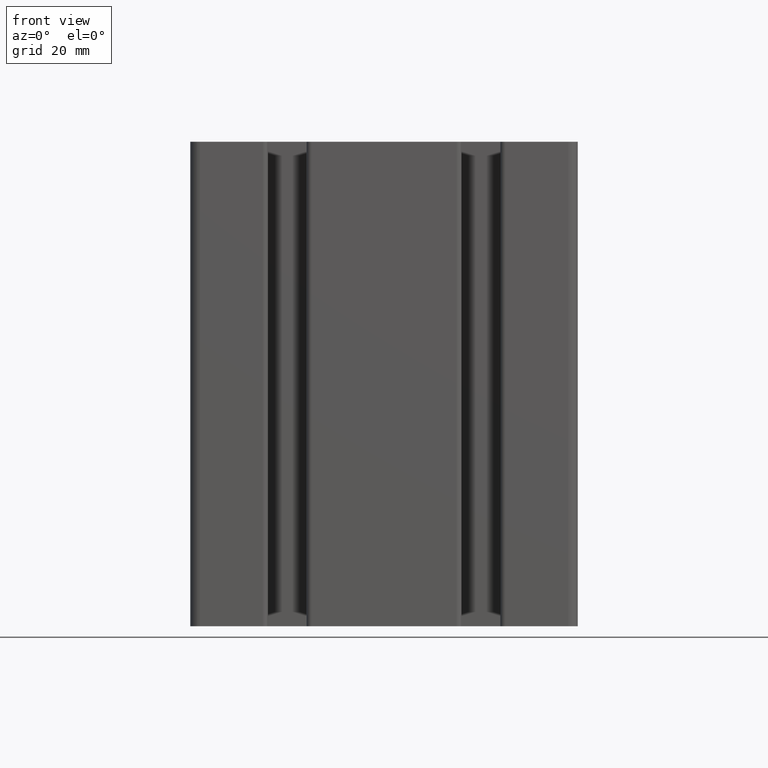
[diagram: clean part render]
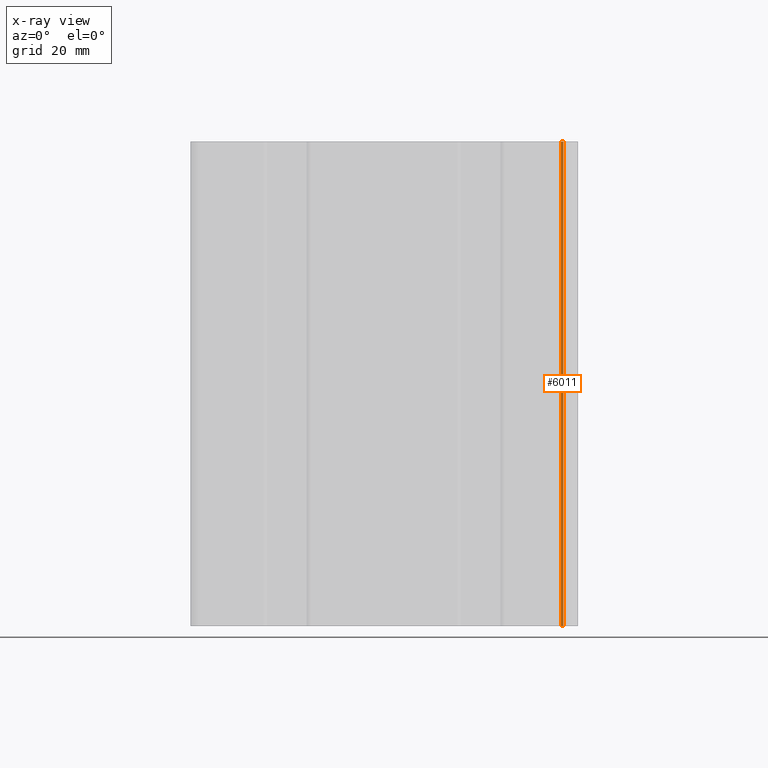
[diagram: x-ray — body ghosted, one internal face saturated and labeled with its STEP entity id]
A machine part, front view, then the same camera in x-ray: the body is ghosted and one INTERNAL B-rep face — a face not visible from any outside direction — is saturated and labeled: STEP entity #6011.
In plain terms, the highlighted planar face has unit normal (0, 1, 0).
Its self-contained STEP definition (entity closure, byte-faithful):
#87=PLANE('',#6427);
#301=FACE_OUTER_BOUND('',#613,.T.);
#613=EDGE_LOOP('',(#4325,#4326,#4327,#4328));
#1041=LINE('',#9280,#1665);
#1043=LINE('',#9284,#1667);
#1044=LINE('',#9286,#1668);
#1045=LINE('',#9287,#1669);
#1665=VECTOR('',#7441,100.);
#1667=VECTOR('',#7445,0.500001995948849);
#1668=VECTOR('',#7446,100.);
#1669=VECTOR('',#7447,0.500001995948849);
#2591=VERTEX_POINT('',#9277);
#2592=VERTEX_POINT('',#9279);
#2593=VERTEX_POINT('',#9283);
#2594=VERTEX_POINT('',#9285);
#3305=EDGE_CURVE('',#2592,#2591,#1041,.T.);
#3307=EDGE_CURVE('',#2593,#2591,#1043,.T.);
#3308=EDGE_CURVE('',#2594,#2593,#1044,.T.);
#3309=EDGE_CURVE('',#2592,#2594,#1045,.T.);
#4325=ORIENTED_EDGE('',*,*,#3307,.F.);
#4326=ORIENTED_EDGE('',*,*,#3308,.F.);
#4327=ORIENTED_EDGE('',*,*,#3309,.F.);
#4328=ORIENTED_EDGE('',*,*,#3305,.T.);
#6011=ADVANCED_FACE('',(#301),#87,.F.);
#6427=AXIS2_PLACEMENT_3D('',#9282,#7443,#7444);
#7441=DIRECTION('',(0.,0.,1.));
#7443=DIRECTION('center_axis',(0.,1.,0.));
#7444=DIRECTION('ref_axis',(-1.,0.,0.));
#7445=DIRECTION('',(1.,0.,0.));
#7446=DIRECTION('',(0.,0.,1.));
#7447=DIRECTION('',(-1.,0.,0.));
#9277=CARTESIAN_POINT('',(37.,12.,100.));
#9279=CARTESIAN_POINT('',(37.,12.,0.));
#9280=CARTESIAN_POINT('',(37.,12.,0.));
#9282=CARTESIAN_POINT('Origin',(37.,12.,0.));
#9283=CARTESIAN_POINT('',(36.4999980040511,12.,100.));
#9284=CARTESIAN_POINT('',(18.5,12.,100.));
#9285=CARTESIAN_POINT('',(36.4999980040511,12.,0.));
#9286=CARTESIAN_POINT('',(36.4999980040511,12.,0.));
#9287=CARTESIAN_POINT('',(18.5,12.,0.));